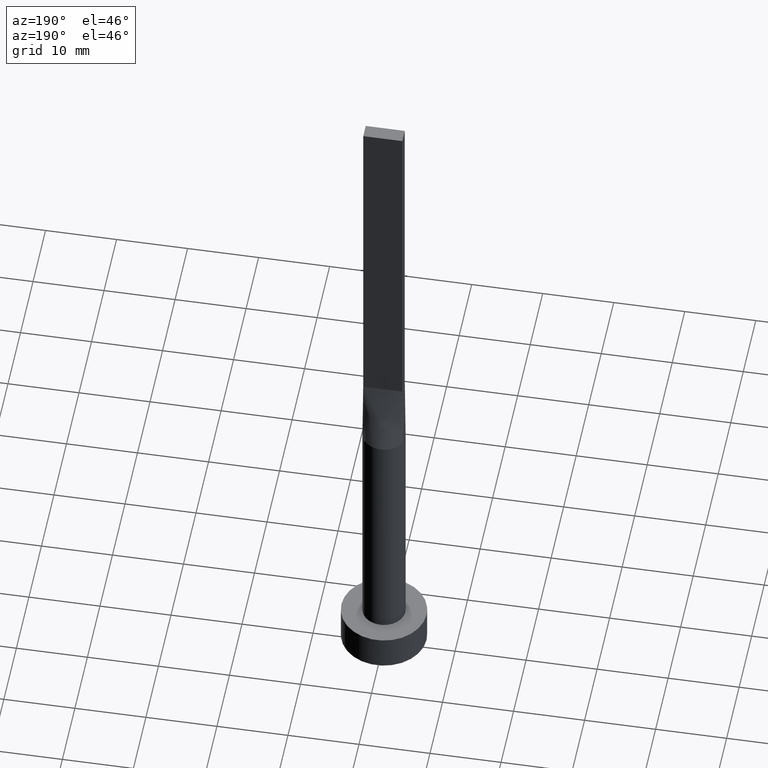
[diagram: clean part render]
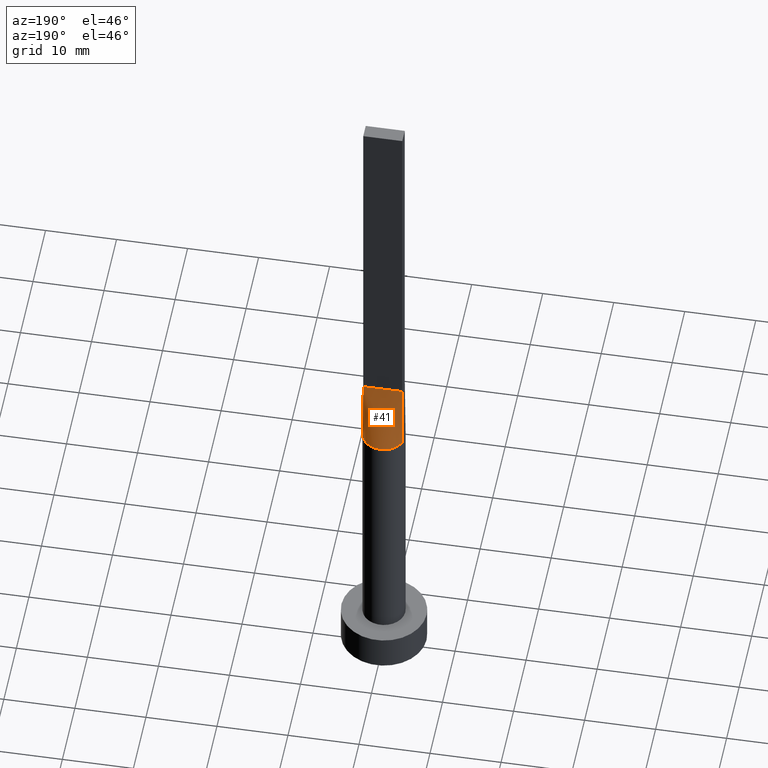
[diagram: same view with one face highlighted and labeled with its STEP entity id]
A machine part, auxiliary view. The second image highlights one B-rep face of the part: STEP entity #41.
In plain terms, the highlighted face is a freeform B-spline surface patch.
Its self-contained STEP definition (entity closure, byte-faithful):
#10 = CARTESIAN_POINT ( 'NONE',  ( -2.625980160873452096, 1.476334031700886396, 39.99999999999998579 ) ) ;
#13 = CARTESIAN_POINT ( 'NONE',  ( 2.115507543051069916, 2.149870311632976705, 40.00000000000000711 ) ) ;
#16 = CARTESIAN_POINT ( 'NONE',  ( -1.145833333333331261, 1.000000000000000000, 50.00000000000000000 ) ) ;
#36 = DIRECTION ( 'NONE',  ( -1.000000000000000000, -0.000000000000000000, -0.000000000000000000 ) ) ;
#41 = ADVANCED_FACE ( 'NONE', ( #394 ), #162, .T. ) ;
#47 = CARTESIAN_POINT ( 'NONE',  ( -2.749999999999999556, 1.000000000000000000, 50.00000000000000000 ) ) ;
#51 = CARTESIAN_POINT ( 'NONE',  ( -1.338960936578149408, 2.706038443291637119, 39.99999999999999289 ) ) ;
#55 = CARTESIAN_POINT ( 'NONE',  ( -2.314486317179579977, 1.928337902455808051, 40.00000000000000000 ) ) ;
#57 = CARTESIAN_POINT ( 'NONE',  ( -2.819429393986302657, 1.025247261300842760, 40.00000000000000000 ) ) ;
#78 = ORIENTED_EDGE ( 'NONE', *, *, #346, .F. ) ;
#83 = CARTESIAN_POINT ( 'NONE',  ( 2.115507543051069916, 2.149870311632976705, 40.00000000000000711 ) ) ;
#94 = CARTESIAN_POINT ( 'NONE',  ( 0.6998073349918605413, 2.936959335800557014, 40.00000000000000000 ) ) ;
#99 = CARTESIAN_POINT ( 'NONE',  ( 0.3502136323054376721, 3.000000000000000444, 40.00000000000000000 ) ) ;
#107 = EDGE_LOOP ( 'NONE', ( #116, #290, #78, #508 ) ) ;
#110 = EDGE_CURVE ( 'NONE', #315, #195, #115, .T. ) ;
#115 = B_SPLINE_CURVE_WITH_KNOTS ( 'NONE', 3,
 ( #197, #529, #407, #140, #13, #542, #445, #94, #99, #271, #269, #539, #276, #449, #55, #239, #316, #57 ),
 .UNSPECIFIED., .F., .F.,
 ( 4, 2, 2, 2, 2, 2, 2, 2, 4 ),
 ( 0.000000000000000000, 0.1249999999999998890, 0.2499999999999997780, 0.3749999999999997780, 0.4999999999999997780, 0.6249999999999997780, 0.7499999999999997780, 0.8749999999999998890, 1.000000000000000000 ),
 .UNSPECIFIED. ) ;
#116 = ORIENTED_EDGE ( 'NONE', *, *, #110, .T. ) ;
#121 = CARTESIAN_POINT ( 'NONE',  ( 2.291666666666666963, 1.000000000000000000, 50.00000000000000000 ) ) ;
#123 = CARTESIAN_POINT ( 'NONE',  ( -2.819429393986302657, 1.025247261300842760, 40.00000000000000000 ) ) ;
#124 = CARTESIAN_POINT ( 'NONE',  ( 1.627925520694712080, 2.539128397820340943, 40.00000000000000000 ) ) ;
#130 = CARTESIAN_POINT ( 'NONE',  ( -2.749999999999999556, 1.000000000000000000, 50.00000000000000000 ) ) ;
#136 = CARTESIAN_POINT ( 'NONE',  ( 2.739088299662392867, 1.246032108968142538, 40.00000000000000711 ) ) ;
#140 = CARTESIAN_POINT ( 'NONE',  ( 2.314486317179579977, 1.928337902455807384, 40.00000000000000000 ) ) ;
#146 = CARTESIAN_POINT ( 'NONE',  ( -2.739088299662392423, 1.246032108968142316, 40.00000000000000000 ) ) ;
#151 = EDGE_CURVE ( 'NONE', #315, #164, #376, .T. ) ;
#155 = CARTESIAN_POINT ( 'NONE',  ( 0.2291666666666679342, 1.000000000000000000, 50.00000000000000711 ) ) ;
#161 = LINE ( 'NONE', #130, #581 ) ;
#162 = B_SPLINE_SURFACE_WITH_KNOTS ( 'NONE', 3, 1, ( 
 ( #564, #580 ),
 ( #136, #470 ),
 ( #348, #121 ),
 ( #170, #335 ),
 ( #83, #518 ),
 ( #124, #296 ),
 ( #259, #474 ),
 ( #432, #273 ),
 ( #203, #155 ),
 ( #410, #497 ),
 ( #236, #356 ),
 ( #51, #536 ),
 ( #443, #16 ),
 ( #401, #310 ),
 ( #190, #233 ),
 ( #10, #353 ),
 ( #146, #532 ),
 ( #488, #47 ) ),
 .UNSPECIFIED., .F., .F., .F.,
 ( 4, 2, 2, 2, 2, 2, 2, 2, 4 ),
 ( 2, 2 ),
 ( 0.000000000000000000, 0.1249999999999998890, 0.2499999999999997780, 0.3749999999999997780, 0.4999999999999997780, 0.6249999999999997780, 0.7499999999999997780, 0.8749999999999998890, 1.000000000000000000 ),
 ( 0.000000000000000000, 1.000000000000000000 ),
 .UNSPECIFIED. ) ;
#164 = VERTEX_POINT ( 'NONE', #334 ) ;
#170 = CARTESIAN_POINT ( 'NONE',  ( 2.314486317179579977, 1.928337902455807384, 40.00000000000000000 ) ) ;
#183 = LINE ( 'NONE', #189, #548 ) ;
#189 = CARTESIAN_POINT ( 'NONE',  ( -2.784690135232655628, 1.012614594630056430, 45.00000000000000000 ) ) ;
#190 = CARTESIAN_POINT ( 'NONE',  ( -2.314486317179579977, 1.928337902455808051, 40.00000000000000000 ) ) ;
#195 = VERTEX_POINT ( 'NONE', #123 ) ;
#197 = CARTESIAN_POINT ( 'NONE',  ( 2.819412401233197141, 1.025240989080170806, 40.00000000000000000 ) ) ;
#203 = CARTESIAN_POINT ( 'NONE',  ( 0.3502136323054376721, 3.000000000000000444, 40.00000000000000000 ) ) ;
#222 = CARTESIAN_POINT ( 'NONE',  ( -2.749999999999999556, 1.000000000000000000, 50.00000000000000000 ) ) ;
#233 = CARTESIAN_POINT ( 'NONE',  ( -1.833333333333331261, 1.000000000000000000, 50.00000000000000000 ) ) ;
#236 = CARTESIAN_POINT ( 'NONE',  ( -0.6998073349918608743, 2.936959335800557014, 40.00000000000000000 ) ) ;
#239 = CARTESIAN_POINT ( 'NONE',  ( -2.625980160873452096, 1.476334031700886396, 39.99999999999998579 ) ) ;
#253 = DIRECTION ( 'NONE',  ( -0.006937837988376408145, -0.002522850177591326286, 0.9999727504442450510 ) ) ;
#259 = CARTESIAN_POINT ( 'NONE',  ( 1.338960936578149630, 2.706038443291637563, 40.00000000000000000 ) ) ;
#269 = CARTESIAN_POINT ( 'NONE',  ( -0.6998073349918608743, 2.936959335800557014, 40.00000000000000000 ) ) ;
#271 = CARTESIAN_POINT ( 'NONE',  ( -0.3502136323054376721, 2.999999999999999112, 39.99999999999999289 ) ) ;
#272 = DIRECTION ( 'NONE',  ( 0.006937837988376408145, -0.002522850177591348404, 0.9999727504442450510 ) ) ;
#273 = CARTESIAN_POINT ( 'NONE',  ( 0.4583333333333349247, 1.000000000000000000, 50.00000000000000000 ) ) ;
#276 = CARTESIAN_POINT ( 'NONE',  ( -1.627925520694712747, 2.539128397820341831, 40.00000000000000711 ) ) ;
#290 = ORIENTED_EDGE ( 'NONE', *, *, #462, .T. ) ;
#296 = CARTESIAN_POINT ( 'NONE',  ( 1.145833333333335036, 1.000000000000000000, 50.00000000000000000 ) ) ;
#310 = CARTESIAN_POINT ( 'NONE',  ( -1.604166666666664520, 1.000000000000000000, 50.00000000000000000 ) ) ;
#315 = VERTEX_POINT ( 'NONE', #321 ) ;
#316 = CARTESIAN_POINT ( 'NONE',  ( -2.739088299662392423, 1.246032108968142316, 40.00000000000000000 ) ) ;
#321 = CARTESIAN_POINT ( 'NONE',  ( 2.819412401233197141, 1.025240989080170806, 40.00000000000000000 ) ) ;
#334 = CARTESIAN_POINT ( 'NONE',  ( 2.749999999999999556, 1.000000000000000000, 50.00000000000000000 ) ) ;
#335 = CARTESIAN_POINT ( 'NONE',  ( 1.833333333333334370, 1.000000000000000000, 50.00000000000000000 ) ) ;
#346 = EDGE_CURVE ( 'NONE', #164, #392, #161, .T. ) ;
#348 = CARTESIAN_POINT ( 'NONE',  ( 2.625980160873452540, 1.476334031700886618, 40.00000000000000000 ) ) ;
#353 = CARTESIAN_POINT ( 'NONE',  ( -2.291666666666665186, 1.000000000000000000, 50.00000000000000000 ) ) ;
#356 = CARTESIAN_POINT ( 'NONE',  ( -0.4583333333333315385, 1.000000000000000000, 50.00000000000000000 ) ) ;
#376 = LINE ( 'NONE', #504, #568 ) ;
#392 = VERTEX_POINT ( 'NONE', #222 ) ;
#394 = FACE_OUTER_BOUND ( 'NONE', #107, .T. ) ;
#401 = CARTESIAN_POINT ( 'NONE',  ( -2.115507543051069916, 2.149870311632977593, 39.99999999999999289 ) ) ;
#407 = CARTESIAN_POINT ( 'NONE',  ( 2.625980160873452540, 1.476334031700886618, 40.00000000000000000 ) ) ;
#410 = CARTESIAN_POINT ( 'NONE',  ( -0.3502136323054376721, 2.999999999999999112, 39.99999999999999289 ) ) ;
#432 = CARTESIAN_POINT ( 'NONE',  ( 0.6998073349918605413, 2.936959335800557014, 40.00000000000000000 ) ) ;
#443 = CARTESIAN_POINT ( 'NONE',  ( -1.627925520694712747, 2.539128397820341831, 40.00000000000000711 ) ) ;
#445 = CARTESIAN_POINT ( 'NONE',  ( 1.338960936578149630, 2.706038443291637563, 40.00000000000000000 ) ) ;
#449 = CARTESIAN_POINT ( 'NONE',  ( -2.115507543051069916, 2.149870311632977593, 39.99999999999999289 ) ) ;
#462 = EDGE_CURVE ( 'NONE', #195, #392, #183, .T. ) ;
#470 = CARTESIAN_POINT ( 'NONE',  ( 2.520833333333333037, 1.000000000000000000, 50.00000000000000000 ) ) ;
#474 = CARTESIAN_POINT ( 'NONE',  ( 0.9166666666666685170, 1.000000000000000000, 50.00000000000000000 ) ) ;
#488 = CARTESIAN_POINT ( 'NONE',  ( -2.819380270465311700, 1.025229189260112861, 40.00000000000000000 ) ) ;
#497 = CARTESIAN_POINT ( 'NONE',  ( -0.2291666666666652696, 1.000000000000000000, 50.00000000000000000 ) ) ;
#504 = CARTESIAN_POINT ( 'NONE',  ( 2.784690135232655628, 1.012614594630056430, 45.00000000000000000 ) ) ;
#508 = ORIENTED_EDGE ( 'NONE', *, *, #151, .F. ) ;
#518 = CARTESIAN_POINT ( 'NONE',  ( 1.604166666666668073, 1.000000000000000000, 50.00000000000000000 ) ) ;
#529 = CARTESIAN_POINT ( 'NONE',  ( 2.739088299662392867, 1.246032108968142538, 40.00000000000000711 ) ) ;
#532 = CARTESIAN_POINT ( 'NONE',  ( -2.520833333333332593, 1.000000000000000000, 50.00000000000000000 ) ) ;
#536 = CARTESIAN_POINT ( 'NONE',  ( -0.9166666666666644092, 1.000000000000000000, 50.00000000000000000 ) ) ;
#539 = CARTESIAN_POINT ( 'NONE',  ( -1.338960936578149408, 2.706038443291637119, 39.99999999999999289 ) ) ;
#542 = CARTESIAN_POINT ( 'NONE',  ( 1.627925520694712080, 2.539128397820340943, 40.00000000000000000 ) ) ;
#548 = VECTOR ( 'NONE', #272, 1000.000000000000227 ) ;
#564 = CARTESIAN_POINT ( 'NONE',  ( 2.819380270465311700, 1.025229189260113083, 40.00000000000000000 ) ) ;
#568 = VECTOR ( 'NONE', #253, 1000.000000000000227 ) ;
#580 = CARTESIAN_POINT ( 'NONE',  ( 2.749999999999999556, 1.000000000000000000, 50.00000000000000000 ) ) ;
#581 = VECTOR ( 'NONE', #36, 1000.000000000000000 ) ;